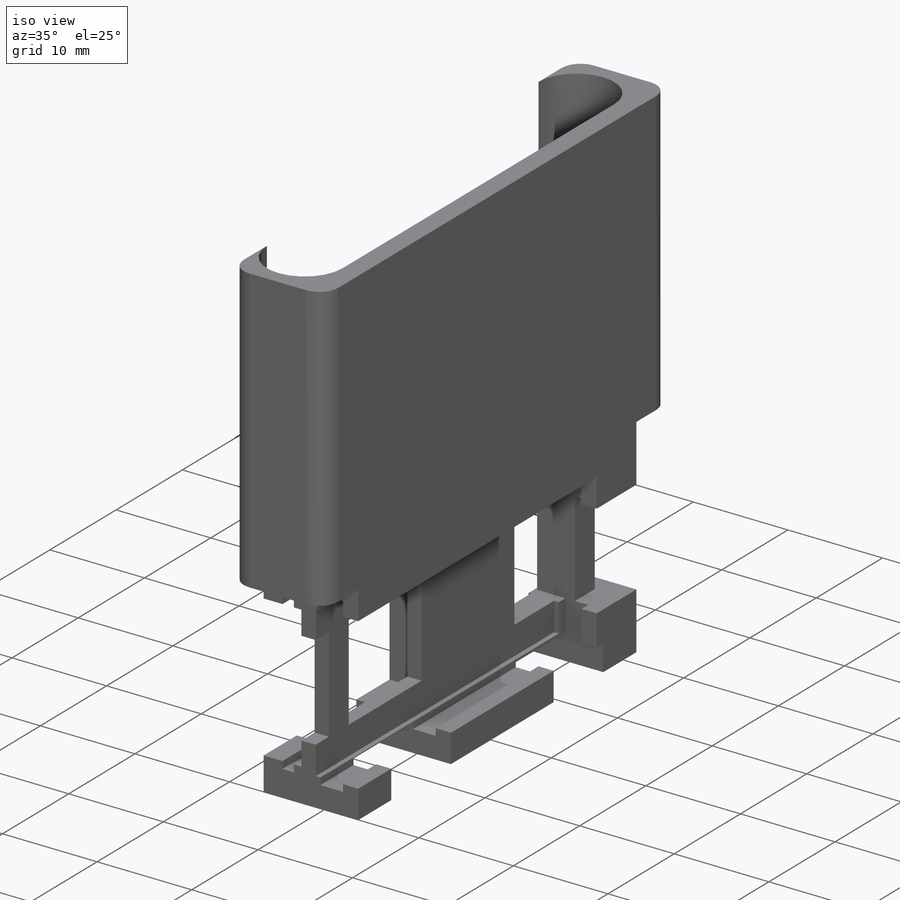
[diagram: iso view]
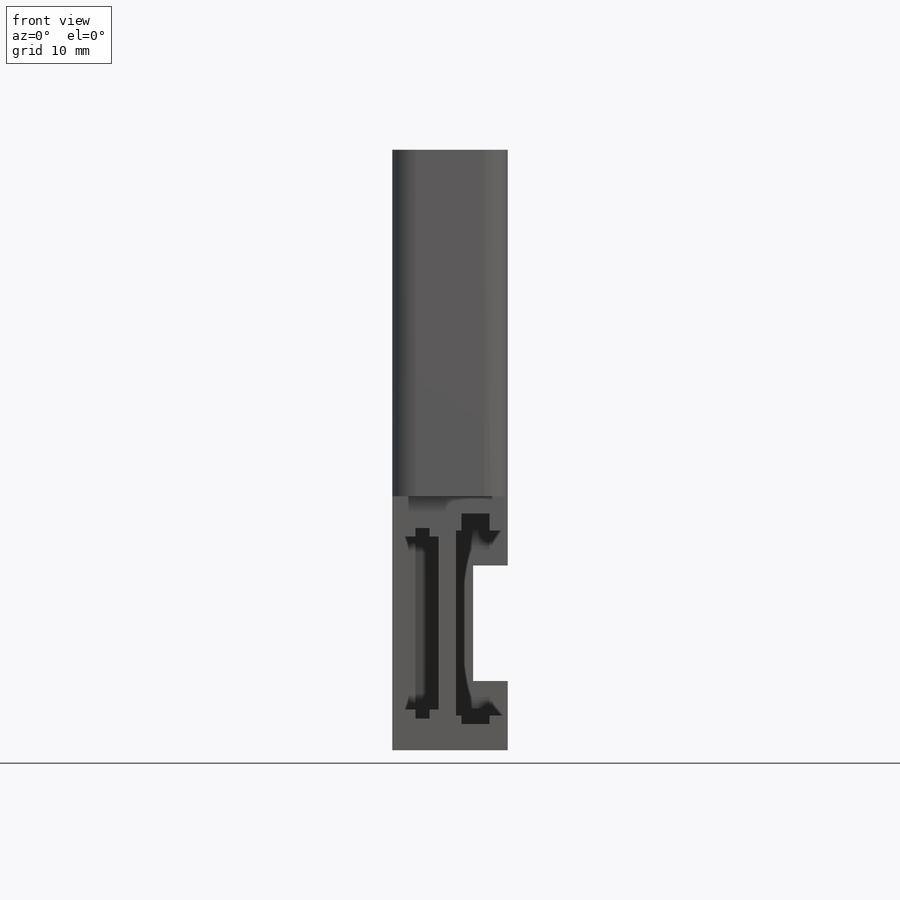
[diagram: front view]
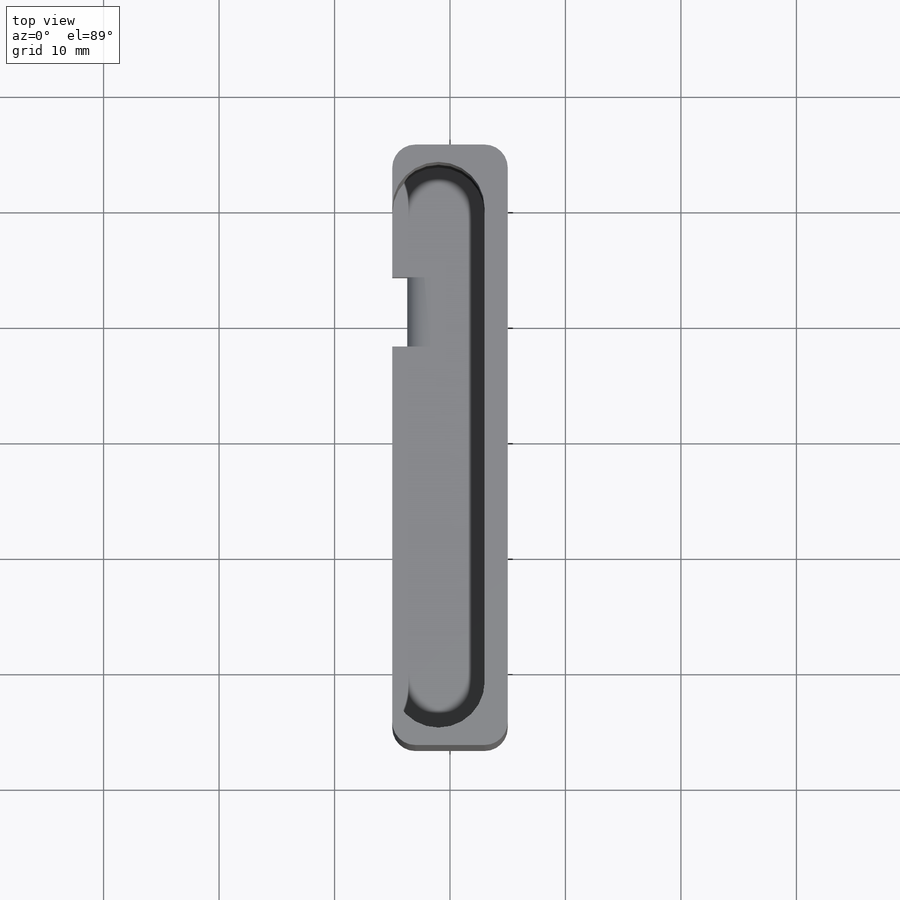
[diagram: top view]
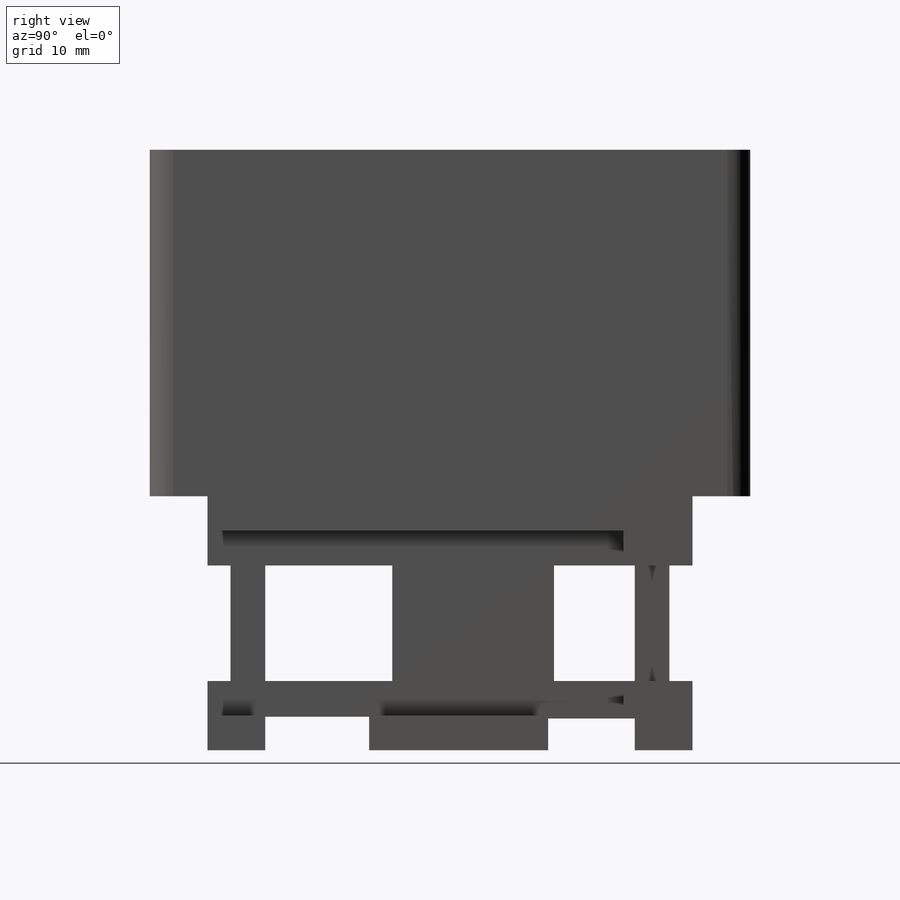
[diagram: right view]
SOLIDWORKS PART (.sldprt)
format: sldprt  version: not decoded by parser v0  size: 564,224 bytes
history: native  units: mm
features: sketch x17, cut_extrude x15, fillet x3, extrude x2, material x1 (+13 scaffold rows collapsed)
feature tree (51):
  scaffold x13  (default folders/planes/origin — collapsed)
  material  "Material <not specified>"
  sketch  "Sketch1"  dims[D1=22.0mm D2=10.0mm]
  extrude  "Boss-Extrude1"  Depth=42mm
  sketch  "Sketch2"  dims[D1=4.5mm D2=0.0mm D3=16.0mm D4=0.0mm]
  cut_extrude  "Cut-Extrude1"  Depth=36mm
  sketch  "Sketch4"  dims[D1=18.2mm D2=2.4mm D3=0.5mm]
  cut_extrude  "Cut-Extrude3"  Depth=37mm
  sketch  "Sketch5"  dims[D1=4.0mm D2=0.0mm D3=15.0mm D4=0.0mm]
  cut_extrude  "Cut-Extrude4"  Depth=19mm
  sketch  "Sketch6"  dims[D1=1.2mm D2=2.0mm D3=16.5mm D4=0.0mm]
  cut_extrude  "Cut-Extrude5"  Depth=20.5mm
  sketch  "Sketch8"  dims[D1=3.0mm D2=0.0mm D3=14.5mm D4=0.0mm]
  cut_extrude  "Cut-Extrude6"  Depth=15.5mm
  sketch  "Sketch9"  dims[D1=0.5mm D2=16.5mm D3=0.0mm D4=1.2mm]
  cut_extrude  "Cut-Extrude7"  Depth=16.5mm
  sketch  "Sketch10"  dims[D1=16.0mm D2=12.0mm D3=2.0mm D4=0.0mm]
  cut_extrude  "Cut-Extrude8"  Depth=2.5mm
  sketch  "Sketch12"  dims[D1=2.9mm D2=2.75mm D3=5.0mm D4=5.0mm D5=5.0mm D6=3.0mm]
  cut_extrude  "Cut-Extrude11"  Depth=10mm
  sketch  "Sketch13"
  cut_extrude  "Cut-Extrude12"  [1 undecoded]
  sketch  "Sketch14"
  cut_extrude  "Cut-Extrude13"  [1 undecoded]
  sketch  "Sketch15"  dims[D1=10.0mm D2=10.0mm D3=0.0mm D4=0.0mm D5=0.0mm D6=2.0mm D7=3.0mm D8=11.0mm]
  cut_extrude  "Cut-Extrude14"  [1 undecoded]
  sketch  "Sketch16"  dims[D1=10.0mm D2=2.0mm D3=3.0mm D4=7.0mm D5=10.0mm D6=0.0mm D7=0.0mm]
  cut_extrude  "Cut-Extrude15"  Depth=10mm
  sketch  "Sketch17"  dims[D1=3.0mm]
  cut_extrude  "Cut-Extrude16"  Depth=10mm
  sketch  "Sketch18"  dims[D1=10.0mm D2=52.0mm D3=5.0mm D4=0.0mm]
  extrude  "Boss-Extrude3"  Depth=30mm
  sketch  "Sketch21"  dims[D1=2.0mm D2=4.0mm]
  cut_extrude  "Cut-Extrude18"  Depth=28mm
  fillet  "Fillet1"  Radius=2mm
  fillet  "Fillet3"  Radius=1mm
  sketch  "Sketch22"  dims[D1=8.0mm D2=41.0mm D3=0.0mm D4=0.0mm]
  cut_extrude  "Cut-Extrude19"  Depth=28mm
  fillet  "Fillet4"  Radius=2mm
decode coverage: 32 of 37 modeling features carry decoded parameters
note: 3 parameter values undecoded
summary: no parameter record found for 3 features
note: suppression state not decoded; provenance and decode notes live in map.json
